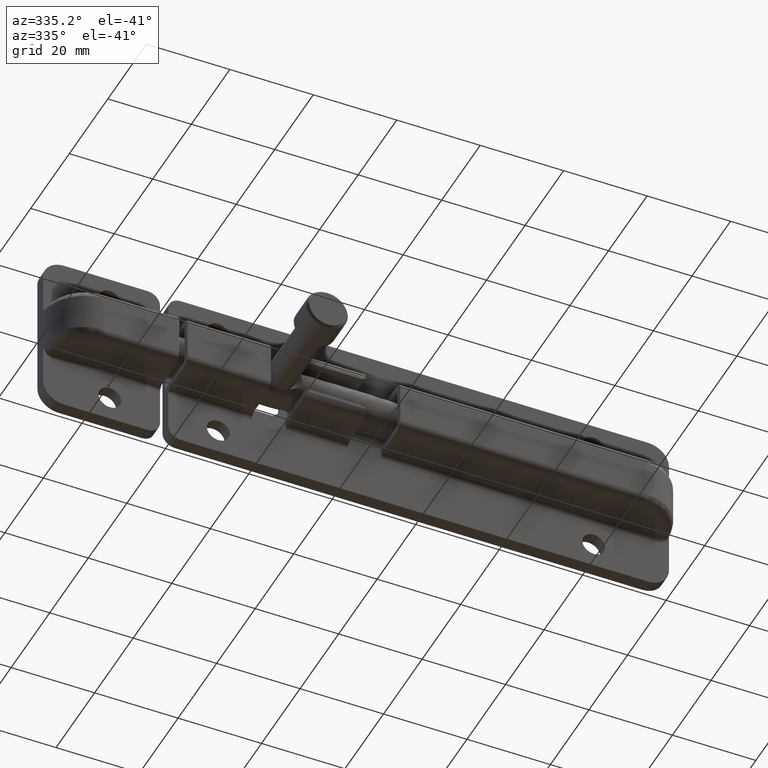
[diagram: clean part render]
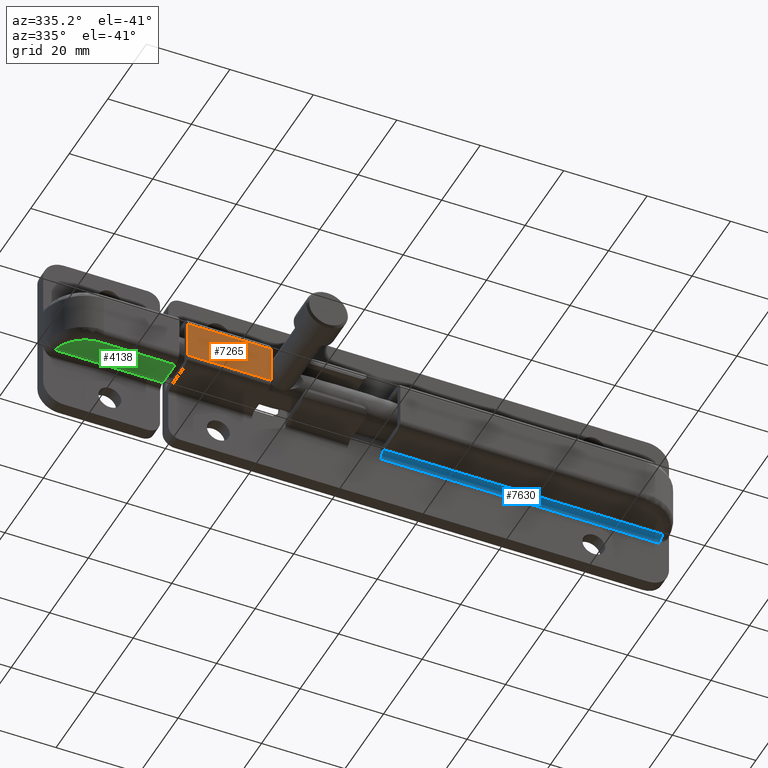
[diagram: same view with three faces highlighted in distinct colors, each labeled with its STEP entity id]
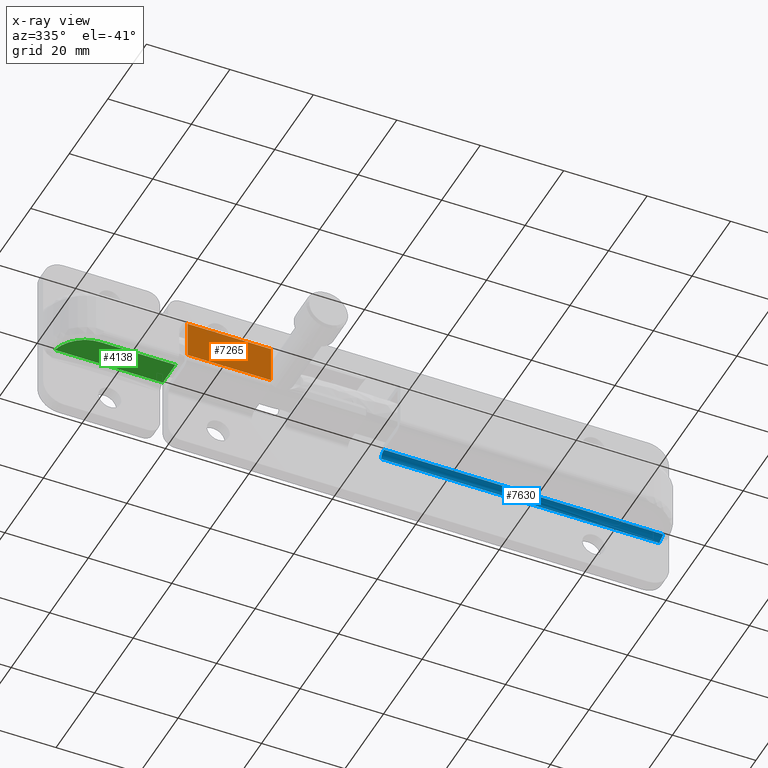
[diagram: x-ray of the same camera — body ghosted, the three highlighted faces saturated]
A machine part, auxiliary view with three faces highlighted in distinct colors.
The next image is the same camera in x-ray (body ghosted, the three faces saturated) — at least one of them is partly hidden behind the body in this view.
Their STEP definitions:

[orange] entity #7265 — the highlighted face is a freeform B-spline surface patch.
#5480=CARTESIAN_POINT('',(20.0,-11.500000000000000,4.500000000000000));
#5481=VERTEX_POINT('',#5480);
#5495=CARTESIAN_POINT('',(20.0,-11.500000000000000,-4.500000000000000));
#5496=VERTEX_POINT('',#5495);
#5497=CARTESIAN_POINT('',(20.0,-11.500000000000000,4.500000000000000));
#5498=CARTESIAN_POINT('',(20.0,-11.500000000000000,-4.500000000000000));
#5499=QUASI_UNIFORM_CURVE('',1,(#5497,#5498),.UNSPECIFIED.,.F.,.U.);
#5500=EDGE_CURVE('',#5481,#5496,#5499,.T.);
#6171=CARTESIAN_POINT('',(0.0,-11.500000000000000,-4.500000000000000));
#6172=VERTEX_POINT('',#6171);
#6173=CARTESIAN_POINT('',(0.0,-11.500000000000000,-4.500000000000000));
#6174=CARTESIAN_POINT('',(20.0,-11.500000000000000,-4.500000000000000));
#6175=QUASI_UNIFORM_CURVE('',1,(#6173,#6174),.UNSPECIFIED.,.F.,.U.);
#6176=EDGE_CURVE('',#6172,#5496,#6175,.T.);
#6490=CARTESIAN_POINT('',(0.0,-11.500000000000000,4.500000000000000));
#6491=VERTEX_POINT('',#6490);
#6505=CARTESIAN_POINT('',(20.0,-11.500000000000000,4.500000000000000));
#6506=CARTESIAN_POINT('',(0.0,-11.500000000000000,4.500000000000000));
#6507=QUASI_UNIFORM_CURVE('',1,(#6505,#6506),.UNSPECIFIED.,.F.,.U.);
#6508=EDGE_CURVE('',#5481,#6491,#6507,.T.);
#7250=CARTESIAN_POINT('',(-0.998999961236120,-11.500000000000000,-4.949549982556254));
#7251=CARTESIAN_POINT('',(-0.998999961236120,-11.500000000000000,4.949550223955066));
#7252=CARTESIAN_POINT('',(20.999000497677919,-11.500000000000000,-4.949549982556254));
#7253=CARTESIAN_POINT('',(20.999000497677919,-11.500000000000000,4.949550223955066));
#7254=B_SPLINE_SURFACE_WITH_KNOTS('',1,1,((#7250,#7252),(#7251,#7253)),.UNSPECIFIED.,.F.,.F.,.U.,(2,2),(2,2),(0.0,9.899100206511321),(0.0,21.998000458914039),.UNSPECIFIED.);
#7255=ORIENTED_EDGE('',*,*,#6176,.T.);
#7256=ORIENTED_EDGE('',*,*,#5500,.F.);
#7257=ORIENTED_EDGE('',*,*,#6508,.T.);
#7258=CARTESIAN_POINT('',(0.0,-11.500000000000000,4.500000000000000));
#7259=CARTESIAN_POINT('',(0.0,-11.500000000000000,-4.500000000000000));
#7260=QUASI_UNIFORM_CURVE('',1,(#7258,#7259),.UNSPECIFIED.,.F.,.U.);
#7261=EDGE_CURVE('',#6491,#6172,#7260,.T.);
#7262=ORIENTED_EDGE('',*,*,#7261,.T.);
#7263=EDGE_LOOP('',(#7255,#7256,#7257,#7262));
#7264=FACE_OUTER_BOUND('',#7263,.T.);
#7265=ADVANCED_FACE('',(#7264),#7254,.F.);

[blue] entity #7630 — the highlighted face is a freeform B-spline surface patch.
#5589=CARTESIAN_POINT('',(51.0,-1.500000000000000,-8.0));
#5590=VERTEX_POINT('',#5589);
#5596=CARTESIAN_POINT('',(51.0,-2.999999999999885,-6.500000000000000));
#5597=VERTEX_POINT('',#5596);
#5598=CARTESIAN_POINT('',(51.0,-2.999999999999885,-6.500000000000001));
#5599=CARTESIAN_POINT('',(50.999999999999986,-1.499999999999885,-6.500000000000003));
#5600=CARTESIAN_POINT('',(51.0,-1.500000000000000,-8.0));
#5608=(BOUNDED_CURVE()B_SPLINE_CURVE(2,(#5598,#5599,#5600),.UNSPECIFIED.,.F.,.U.)CURVE()GEOMETRIC_REPRESENTATION_ITEM()QUASI_UNIFORM_CURVE()RATIONAL_B_SPLINE_CURVE((1.0,0.707106781186548,1.0))REPRESENTATION_ITEM(''));
#5609=EDGE_CURVE('',#5597,#5590,#5608,.T.);
#5999=CARTESIAN_POINT('',(117.858116822751000,-2.999999999999885,-6.500000000000000));
#6000=VERTEX_POINT('',#5999);
#6014=CARTESIAN_POINT('',(117.745966692414800,-1.499999999999886,-8.0));
#6015=VERTEX_POINT('',#6014);
#6016=CARTESIAN_POINT('',(117.745966692414800,-1.499999999999886,-8.0));
#6017=CARTESIAN_POINT('',(117.745966692414800,-1.499999999999886,-7.949578285558982));
#6018=CARTESIAN_POINT('',(117.747501561785600,-1.502535833359716,-7.899371833862515));
#6019=CARTESIAN_POINT('',(117.753524042063800,-1.512627375947517,-7.799381866694204));
#6020=CARTESIAN_POINT('',(117.758014801953810,-1.520191247300837,-7.749768839669247));
#6021=CARTESIAN_POINT('',(117.775166102328500,-1.549761751860269,-7.604263551977424));
#6022=CARTESIAN_POINT('',(117.791567649341400,-1.578645283663591,-7.510772887971484));
#6023=CARTESIAN_POINT('',(117.820871253975500,-1.635408039304861,-7.375270554555563));
#6024=CARTESIAN_POINT('',(117.831475057873700,-1.656714487356338,-7.330695859286770));
#6025=CARTESIAN_POINT('',(117.853276738331200,-1.703084730186598,-7.244755149518354));
#6026=CARTESIAN_POINT('',(117.864499892906000,-1.728187669460485,-7.203233945741247));
#6027=CARTESIAN_POINT('',(117.898213550463500,-1.809206098723333,-7.082731837461329));
#6028=CARTESIAN_POINT('',(117.920820601571190,-1.870844211957585,-7.007663458337750));
#6029=CARTESIAN_POINT('',(117.960693570838700,-2.010478162812031,-6.868376767949689));
#6030=CARTESIAN_POINT('',(117.977282875273100,-2.086229388616434,-6.806387581891451));
#6031=CARTESIAN_POINT('',(117.993109856095700,-2.209082201220964,-6.724511517379533));
#6032=CARTESIAN_POINT('',(117.996871571561200,-2.251583166776507,-6.699087250601679));
#6033=CARTESIAN_POINT('',(118.000562738213600,-2.339906920051034,-6.652120604949076));
#6034=CARTESIAN_POINT('',(118.000445674797210,-2.385905462338755,-6.630554378303828));
#6035=CARTESIAN_POINT('',(117.993368851112390,-2.524557402267325,-6.573841529095335));
#6036=CARTESIAN_POINT('',(117.979787813285500,-2.619311402077832,-6.545789529007364));
#6037=CARTESIAN_POINT('',(117.944277004145700,-2.764007866269572,-6.517866170532994));
#6038=CARTESIAN_POINT('',(117.930041299369410,-2.812111798048917,-6.511050285707426));
#6039=CARTESIAN_POINT('',(117.897224192148200,-2.907049820334135,-6.502123672586949));
#6040=CARTESIAN_POINT('',(117.878674786969600,-2.953843747295484,-6.499999999999576));
#6041=CARTESIAN_POINT('',(117.858116822751000,-2.999999999999885,-6.500000000000000));
#6042=B_SPLINE_CURVE_WITH_KNOTS('',3,(#6016,#6017,#6018,#6019,#6020,#6021,#6022,#6023,#6024,#6025,#6026,#6027,#6028,#6029,#6030,#6031,#6032,#6033,#6034,#6035,#6036,#6037,#6038,#6039,#6040,#6041),.UNSPECIFIED.,.F.,.U.,(4,2,2,2,2,2,2,2,2,2,2,2,4),(0.0,0.062499999999999,0.124999999999999,0.249999999999998,0.312499999999997,0.374999999999996,0.499999999999993,0.624999999999991,0.687499999999991,0.749999999999991,0.874999999999993,0.937499999999997,1.0),.UNSPECIFIED.);
#6043=EDGE_CURVE('',#6015,#6000,#6042,.T.);
#7349=CARTESIAN_POINT('',(117.745966692414800,-1.499999999999886,-8.0));
#7350=CARTESIAN_POINT('',(51.0,-1.500000000000000,-8.0));
#7351=QUASI_UNIFORM_CURVE('',1,(#7349,#7350),.UNSPECIFIED.,.F.,.U.);
#7352=EDGE_CURVE('',#6015,#5590,#7351,.T.);
#7606=CARTESIAN_POINT('',(49.325008654112288,-3.039265422461697,-6.500514012536664));
#7607=CARTESIAN_POINT('',(119.716519965043100,-3.039265422461697,-6.500514012536664));
#7608=CARTESIAN_POINT('',(49.325008654112274,-1.402863617108707,-6.457663323206014));
#7609=CARTESIAN_POINT('',(119.716519965043130,-1.402863617108707,-6.457663323206014));
#7610=CARTESIAN_POINT('',(49.325008654112288,-1.502797802367084,-8.091572809302285));
#7611=CARTESIAN_POINT('',(119.716519965043100,-1.502797802367084,-8.091572809302285));
#7619=(BOUNDED_SURFACE()B_SPLINE_SURFACE(1,2,((#7606,#7608,#7610),(#7607,#7609,#7611)),.UNSPECIFIED.,.F.,.F.,.U.)B_SPLINE_SURFACE_WITH_KNOTS((2,2),(3,3),(0.0,70.391511310930838),(0.0,2.640063185351003),.UNSPECIFIED.)GEOMETRIC_REPRESENTATION_ITEM()RATIONAL_B_SPLINE_SURFACE(((1.0,0.675590207615660,1.0),(1.0,0.675590207615660,1.0)))REPRESENTATION_ITEM('')SURFACE());
#7620=CARTESIAN_POINT('',(51.0,-2.999999999999885,-6.500000000000000));
#7621=CARTESIAN_POINT('',(117.858116822751000,-2.999999999999885,-6.500000000000000));
#7622=QUASI_UNIFORM_CURVE('',1,(#7620,#7621),.UNSPECIFIED.,.F.,.U.);
#7623=EDGE_CURVE('',#5597,#6000,#7622,.T.);
#7624=ORIENTED_EDGE('',*,*,#7623,.F.);
#7625=ORIENTED_EDGE('',*,*,#5609,.T.);
#7626=ORIENTED_EDGE('',*,*,#7352,.F.);
#7627=ORIENTED_EDGE('',*,*,#6043,.T.);
#7628=EDGE_LOOP('',(#7624,#7625,#7626,#7627));
#7629=FACE_OUTER_BOUND('',#7628,.T.);
#7630=ADVANCED_FACE('',(#7629),#7619,.F.);

[green] entity #4138 — the highlighted face is a freeform B-spline surface patch.
#3174=CARTESIAN_POINT('',(-58.358116822750702,-3.0,-6.500000000000000));
#3175=VERTEX_POINT('',#3174);
#3253=CARTESIAN_POINT('',(-50.500000000000000,-9.499999999999890,-6.500000000000000));
#3254=VERTEX_POINT('',#3253);
#3284=CARTESIAN_POINT('',(-50.500000000000000,-9.499999999999886,-6.500000000000000));
#3285=CARTESIAN_POINT('',(-57.117361534947975,-9.499999999999886,-6.500000000000001));
#3286=CARTESIAN_POINT('',(-58.358116822750830,-3.000000000000028,-6.500000000000000));
#3294=(BOUNDED_CURVE()B_SPLINE_CURVE(2,(#3284,#3285,#3286),.UNSPECIFIED.,.F.,.U.)CURVE()GEOMETRIC_REPRESENTATION_ITEM()QUASI_UNIFORM_CURVE()RATIONAL_B_SPLINE_CURVE((1.0,0.770551750371128,1.0))REPRESENTATION_ITEM(''));
#3295=EDGE_CURVE('',#3254,#3175,#3294,.T.);
#3316=CARTESIAN_POINT('',(-32.500000000000000,-9.499999999999890,-6.500000000000000));
#3317=VERTEX_POINT('',#3316);
#3337=CARTESIAN_POINT('',(-32.500000000000000,-9.499999999999890,-6.500000000000000));
#3338=CARTESIAN_POINT('',(-50.500000000000000,-9.499999999999890,-6.500000000000000));
#3339=QUASI_UNIFORM_CURVE('',1,(#3337,#3338),.UNSPECIFIED.,.F.,.U.);
#3340=EDGE_CURVE('',#3317,#3254,#3339,.T.);
#3359=CARTESIAN_POINT('',(-32.500000000000000,-3.0,-6.500000000000000));
#3360=VERTEX_POINT('',#3359);
#3361=CARTESIAN_POINT('',(-58.358116822750702,-3.0,-6.500000000000000));
#3362=CARTESIAN_POINT('',(-32.500000000000000,-3.0,-6.500000000000000));
#3363=QUASI_UNIFORM_CURVE('',1,(#3361,#3362),.UNSPECIFIED.,.F.,.U.);
#3364=EDGE_CURVE('',#3175,#3360,#3363,.T.);
#4019=CARTESIAN_POINT('',(-32.500000000000000,-3.0,-6.500000000000000));
#4020=CARTESIAN_POINT('',(-32.500000000000000,-9.499999999999890,-6.500000000000000));
#4021=QUASI_UNIFORM_CURVE('',1,(#4019,#4020),.UNSPECIFIED.,.F.,.U.);
#4022=EDGE_CURVE('',#3360,#3317,#4021,.T.);
#4127=CARTESIAN_POINT('',(-59.649728979716549,-9.824674987401622,-6.500000000000000));
#4128=CARTESIAN_POINT('',(-59.649728979716549,-2.675324838254681,-6.500000000000000));
#4129=CARTESIAN_POINT('',(-31.208386455896669,-9.824674987401622,-6.500000000000000));
#4130=CARTESIAN_POINT('',(-31.208386455896669,-2.675324838254681,-6.500000000000000));
#4131=B_SPLINE_SURFACE_WITH_KNOTS('',1,1,((#4127,#4129),(#4128,#4130)),.UNSPECIFIED.,.F.,.F.,.U.,(2,2),(2,2),(0.0,7.149350149146940),(0.0,28.441342523819880),.UNSPECIFIED.);
#4132=ORIENTED_EDGE('',*,*,#3340,.T.);
#4133=ORIENTED_EDGE('',*,*,#3295,.T.);
#4134=ORIENTED_EDGE('',*,*,#3364,.T.);
#4135=ORIENTED_EDGE('',*,*,#4022,.T.);
#4136=EDGE_LOOP('',(#4132,#4133,#4134,#4135));
#4137=FACE_OUTER_BOUND('',#4136,.T.);
#4138=ADVANCED_FACE('',(#4137),#4131,.T.);